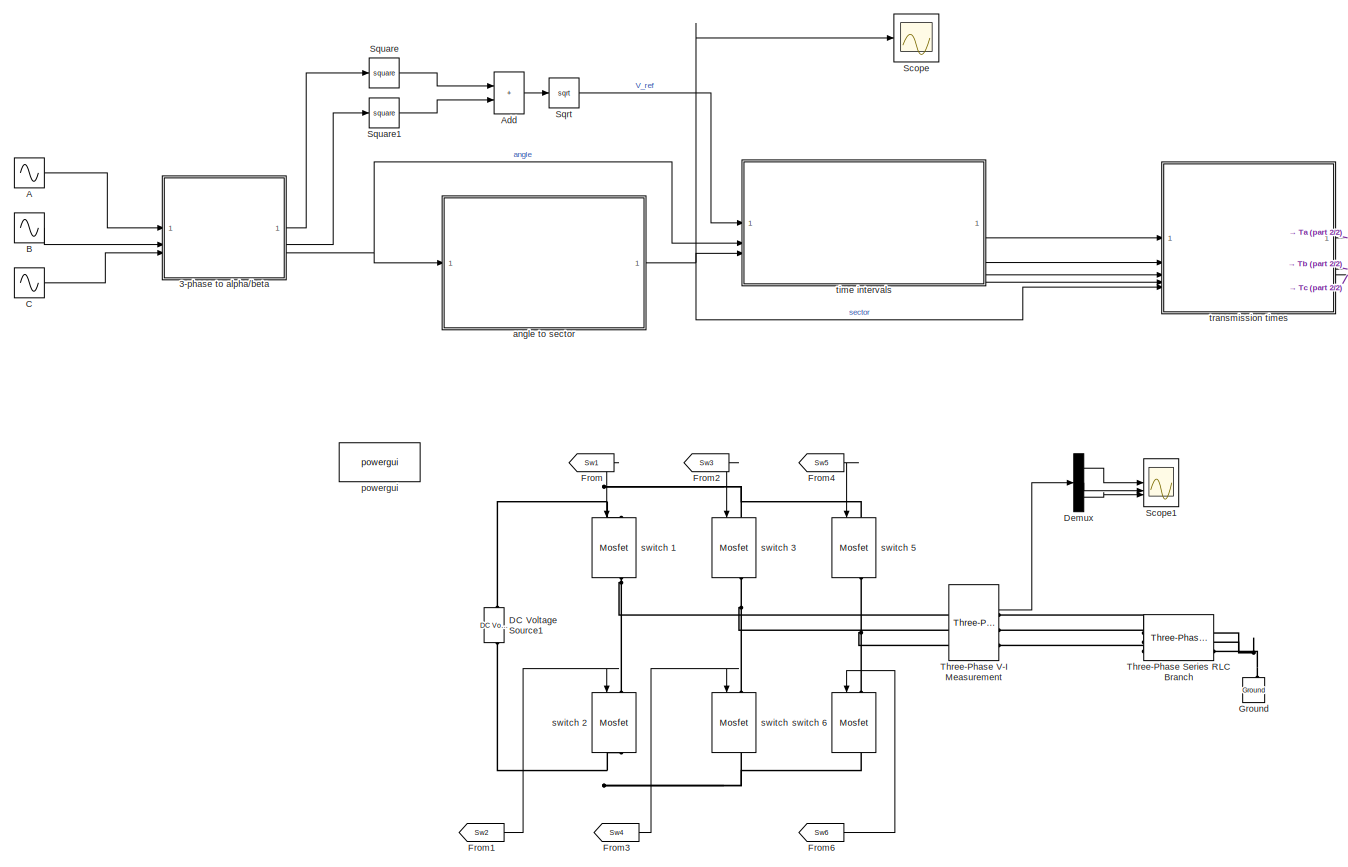
[diagram: root canvas - part 1/2, most of the canvas]
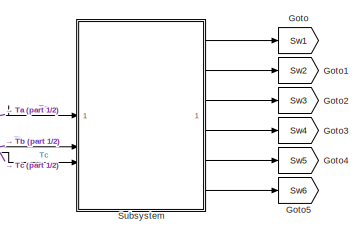
[diagram: root canvas - part 2/2, top right region]
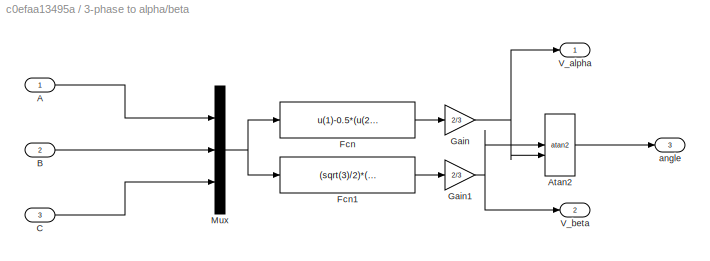
MODEL slx_c0efaa13495a
KIND model
CONFIG AbsTol = auto
CONFIG EnableMultiTasking = off
CONFIG FixedStep = auto
CONFIG MaxStep = 0.0001
CONFIG MinStep = auto
CONFIG RelTol = 1e-3
CONFIG SampleTimeConstraint = Unconstrained
CONFIG SolverName = VariableStepAuto
CONFIG StartTime = 0.0
CONFIG StopTime = 1
BLOCK [SubSystem] 3-phase to alpha//beta
BLOCK [Inport] 3-phase to alpha//beta/A
BLOCK [Trigonometry] 3-phase to alpha//beta/Atan2
  Operator = atan2
BLOCK [Inport] 3-phase to alpha//beta/B
  Port = 2
BLOCK [Inport] 3-phase to alpha//beta/C
  Port = 3
BLOCK [Fcn] 3-phase to alpha//beta/Fcn
  Expr = u(1)-0.5*(u(2)+u(3))
BLOCK [Fcn] 3-phase to alpha//beta/Fcn1
  Expr = (sqrt(3)/2)*(u(2)-u(3))
BLOCK [Gain] 3-phase to alpha//beta/Gain
  Gain = 2/3
BLOCK [Gain] 3-phase to alpha//beta/Gain1
  Gain = 2/3
BLOCK [Mux] 3-phase to alpha//beta/Mux
  DisplayOption = bar
  Inputs = 3
BLOCK [Outport] 3-phase to alpha//beta/V_alpha
BLOCK [Outport] 3-phase to alpha//beta/V_beta
  Port = 2
BLOCK [Outport] 3-phase to alpha//beta/angle
  Port = 3
BLOCK [Sin] A
  Frequency = 2*pi*50
  SampleTime = 0
BLOCK [Sum] Add
  IconShape = rectangular
BLOCK [Sin] B
  Frequency = 2*pi*50
  Phase = 2*pi/3
  SampleTime = 0
BLOCK [Sin] C
  Frequency = 2*pi*50
  Phase = 4*pi/3
  SampleTime = 0
BLOCK [Reference] DC Voltage Source1  REF=spsDCVoltageSourceLib/DC Voltage Source
  LibrarySourceBlock = sps_lib/Sources/DC Voltage Source
  SourceBlock = spsDCVoltageSourceLib/DC Voltage Source
  SourceType = DC Voltage Source
BLOCK [Demux] Demux
  Outputs = 3
BLOCK [From] From
  GotoTag = Sw1
BLOCK [From] From1
  GotoTag = Sw2
BLOCK [From] From2
  GotoTag = Sw3
BLOCK [From] From3
  GotoTag = Sw4
BLOCK [From] From4
  GotoTag = Sw5
BLOCK [From] From6
  GotoTag = Sw6
BLOCK [Goto] Goto
  GotoTag = Sw1
BLOCK [Goto] Goto1
  GotoTag = Sw2
BLOCK [Goto] Goto2
  GotoTag = Sw3
BLOCK [Goto] Goto3
  GotoTag = Sw4
BLOCK [Goto] Goto4
  GotoTag = Sw5
BLOCK [Goto] Goto5
  GotoTag = Sw6
BLOCK [Reference] Ground  REF=spsGroundLib/Ground
  LibrarySourceBlock = sps_lib/Utilities/Ground
  NameLocation = right
  SourceBlock = spsGroundLib/Ground
  SourceType = Ground
BLOCK [Scope] Scope
  Floating = off
  NumInputPorts = 3
  ScopeSpecificationString = Simulink.scopes.TimeScopeBlockCfg('CurrentConfiguration', extmgr.ConfigurationSet(extmgr.Configuration('Core','General UI',true),extmgr.Configuration('Core','Source UI',true),extmgr.Configuration('Sources','WiredSimulink',true),extmgr.Configuration('Visuals','Time Domain',true,'SerializedDisplays',{struct('MinYLimReal','-0.75','MaxYLimReal','6.75','YLabelReal','','MinYLimMag','0.00000','MaxYLimMag...<+1555ch>
BLOCK [Scope] Scope1
  Floating = off
  NumInputPorts = 3
  ScopeSpecificationString = Simulink.scopes.TimeScopeBlockCfg('CurrentConfiguration', extmgr.ConfigurationSet(extmgr.Configuration('Core','General UI',true),extmgr.Configuration('Core','Source UI',true),extmgr.Configuration('Sources','WiredSimulink',true,'DataLoggingVariableName','ScopeData2'),extmgr.Configuration('Visuals','Time Domain',true,'SerializedDisplays',{struct('MinYLimReal','-67.56476','MaxYLimReal','67.56708','YL...<+1510ch>
BLOCK [Sqrt] Sqrt
BLOCK [Math] Square
  Operator = square
BLOCK [Math] Square1
  Operator = square
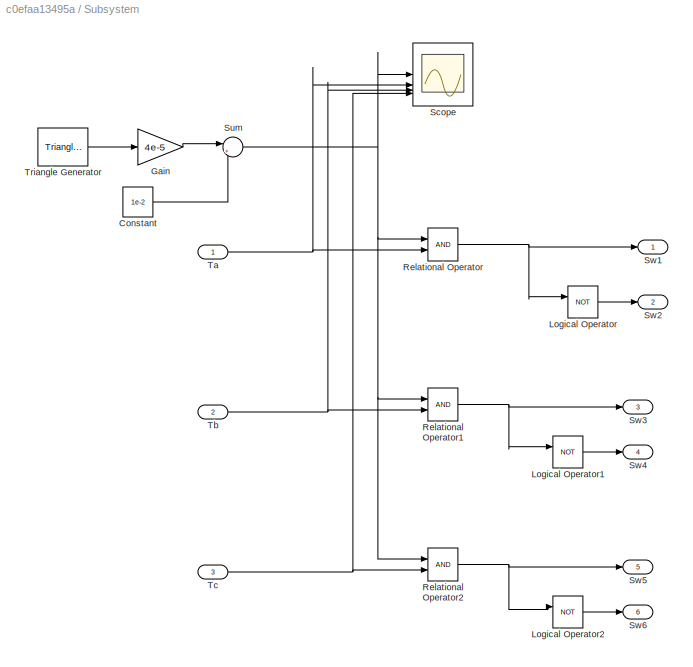
BLOCK [SubSystem] Subsystem
BLOCK [Constant] Subsystem/Constant
  Value = 1e-2
BLOCK [Gain] Subsystem/Gain
  Gain = 4e-5
BLOCK [Logic] Subsystem/Logical Operator
  AllPortsSameDT = off
  Operator = NOT
  OutDataTypeStr = boolean
BLOCK [Logic] Subsystem/Logical Operator1
  AllPortsSameDT = off
  Operator = NOT
  OutDataTypeStr = boolean
BLOCK [Logic] Subsystem/Logical Operator2
  AllPortsSameDT = off
  Operator = NOT
  OutDataTypeStr = boolean
BLOCK [RelationalOperator] Subsystem/Relational Operator
  InputSameDT = off
  OutDataTypeStr = boolean
  RndMeth = Simplest
BLOCK [RelationalOperator] Subsystem/Relational Operator1
  InputSameDT = off
  OutDataTypeStr = boolean
  RndMeth = Simplest
BLOCK [RelationalOperator] Subsystem/Relational Operator2
  InputSameDT = off
  OutDataTypeStr = boolean
  RndMeth = Simplest
BLOCK [Scope] Subsystem/Scope
  Floating = off
  NumInputPorts = 4
  ScopeSpecificationString = Simulink.scopes.TimeScopeBlockCfg('CurrentConfiguration', extmgr.ConfigurationSet(extmgr.Configuration('Core','General UI',true),extmgr.Configuration('Core','Source UI',true),extmgr.Configuration('Sources','WiredSimulink',true,'DataLoggingVariableName','ScopeData1'),extmgr.Configuration('Visuals','Time Domain',true,'SerializedDisplays',{struct('MinYLimReal','0.00995','MaxYLimReal','0.01005','YLabe...<+1423ch>
BLOCK [Sum] Subsystem/Sum
  Inputs = |++
BLOCK [Outport] Subsystem/Sw1
BLOCK [Outport] Subsystem/Sw2
  Port = 2
BLOCK [Outport] Subsystem/Sw3
  Port = 3
BLOCK [Outport] Subsystem/Sw4
  Port = 4
BLOCK [Outport] Subsystem/Sw5
  Port = 5
BLOCK [Outport] Subsystem/Sw6
  Port = 6
BLOCK [Inport] Subsystem/Ta
BLOCK [Inport] Subsystem/Tb
  Port = 2
BLOCK [Inport] Subsystem/Tc
  Port = 3
BLOCK [Reference] Subsystem/Triangle Generator  REF=spsTriangleGeneratorLib/Triangle
Generator
  LibrarySourceBlock = sps_lib/Sources/Signal Generator Sources/Triangle\nGenerator
  SourceBlock = spsTriangleGeneratorLib/Triangle\nGenerator
  SourceType = Triangle Generator
BLOCK [Reference] Three-Phase Series RLC Branch  REF=spsThreePhaseSeriesRLCBranchLib/Three-Phase
Series RLC Branch
  AttributesFormatString = \n
  LibrarySourceBlock = sps_lib/Passives/Three-Phase\nSeries RLC Branch
  SourceBlock = spsThreePhaseSeriesRLCBranchLib/Three-Phase\nSeries RLC Branch
  SourceType = Three-Phase Series RLC Branch
BLOCK [Reference] Three-Phase V-I Measurement  REF=spsThreePhaseVIMeasurementLib/Three-Phase
V-I Measurement
  LibrarySourceBlock = sps_lib/Sensors and Measurements/Three-Phase\nV-I Measurement
  SourceBlock = spsThreePhaseVIMeasurementLib/Three-Phase\nV-I Measurement
  SourceType = Three-Phase VI Measurement
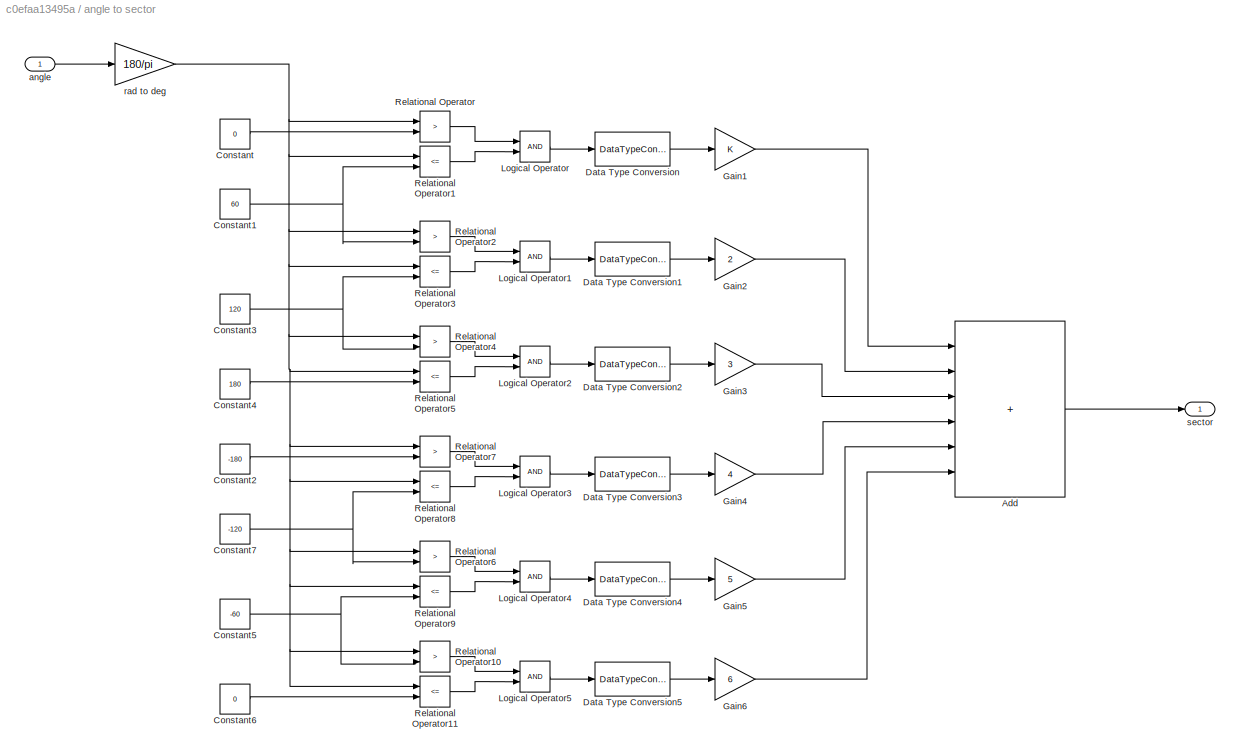
BLOCK [SubSystem] angle to sector
BLOCK [Sum] angle to sector/Add
  IconShape = rectangular
  Inputs = ++++++
BLOCK [Constant] angle to sector/Constant
  Value = 0
BLOCK [Constant] angle to sector/Constant1
  Value = 60
BLOCK [Constant] angle to sector/Constant2
  Value = -180
BLOCK [Constant] angle to sector/Constant3
  Value = 120
BLOCK [Constant] angle to sector/Constant4
  Value = 180
BLOCK [Constant] angle to sector/Constant5
  Value = -60
BLOCK [Constant] angle to sector/Constant6
  Value = 0
BLOCK [Constant] angle to sector/Constant7
  Value = -120
BLOCK [DataTypeConversion] angle to sector/Data Type Conversion
  RndMeth = Floor
  SaturateOnIntegerOverflow = off
BLOCK [DataTypeConversion] angle to sector/Data Type Conversion1
  RndMeth = Floor
  SaturateOnIntegerOverflow = off
BLOCK [DataTypeConversion] angle to sector/Data Type Conversion2
  RndMeth = Floor
  SaturateOnIntegerOverflow = off
BLOCK [DataTypeConversion] angle to sector/Data Type Conversion3
  RndMeth = Floor
  SaturateOnIntegerOverflow = off
BLOCK [DataTypeConversion] angle to sector/Data Type Conversion4
  RndMeth = Floor
  SaturateOnIntegerOverflow = off
BLOCK [DataTypeConversion] angle to sector/Data Type Conversion5
  RndMeth = Floor
  SaturateOnIntegerOverflow = off
BLOCK [Gain] angle to sector/Gain1
BLOCK [Gain] angle to sector/Gain2
  Gain = 2
BLOCK [Gain] angle to sector/Gain3
  Gain = 3
BLOCK [Gain] angle to sector/Gain4
  Gain = 4
BLOCK [Gain] angle to sector/Gain5
  Gain = 5
BLOCK [Gain] angle to sector/Gain6
  Gain = 6
BLOCK [Logic] angle to sector/Logical Operator
  AllPortsSameDT = off
  OutDataTypeStr = boolean
BLOCK [Logic] angle to sector/Logical Operator1
  AllPortsSameDT = off
  OutDataTypeStr = boolean
BLOCK [Logic] angle to sector/Logical Operator2
  AllPortsSameDT = off
  OutDataTypeStr = boolean
BLOCK [Logic] angle to sector/Logical Operator3
  AllPortsSameDT = off
  OutDataTypeStr = boolean
BLOCK [Logic] angle to sector/Logical Operator4
  AllPortsSameDT = off
  OutDataTypeStr = boolean
BLOCK [Logic] angle to sector/Logical Operator5
  AllPortsSameDT = off
  OutDataTypeStr = boolean
BLOCK [RelationalOperator] angle to sector/Relational Operator
  InputSameDT = off
  Operator = >
  OutDataTypeStr = boolean
  RndMeth = Simplest
BLOCK [RelationalOperator] angle to sector/Relational Operator1
  InputSameDT = off
  Operator = <=
  OutDataTypeStr = boolean
  RndMeth = Simplest
BLOCK [RelationalOperator] angle to sector/Relational Operator10
  InputSameDT = off
  Operator = >
  OutDataTypeStr = boolean
  RndMeth = Simplest
BLOCK [RelationalOperator] angle to sector/Relational Operator11
  InputSameDT = off
  Operator = <=
  OutDataTypeStr = boolean
  RndMeth = Simplest
BLOCK [RelationalOperator] angle to sector/Relational Operator2
  InputSameDT = off
  Operator = >
  OutDataTypeStr = boolean
  RndMeth = Simplest
BLOCK [RelationalOperator] angle to sector/Relational Operator3
  InputSameDT = off
  Operator = <=
  OutDataTypeStr = boolean
  RndMeth = Simplest
BLOCK [RelationalOperator] angle to sector/Relational Operator4
  InputSameDT = off
  Operator = >
  OutDataTypeStr = boolean
  RndMeth = Simplest
BLOCK [RelationalOperator] angle to sector/Relational Operator5
  InputSameDT = off
  Operator = <=
  OutDataTypeStr = boolean
  RndMeth = Simplest
BLOCK [RelationalOperator] angle to sector/Relational Operator6
  InputSameDT = off
  Operator = >
  OutDataTypeStr = boolean
  RndMeth = Simplest
BLOCK [RelationalOperator] angle to sector/Relational Operator7
  InputSameDT = off
  Operator = >
  OutDataTypeStr = boolean
  RndMeth = Simplest
BLOCK [RelationalOperator] angle to sector/Relational Operator8
  InputSameDT = off
  Operator = <=
  OutDataTypeStr = boolean
  RndMeth = Simplest
BLOCK [RelationalOperator] angle to sector/Relational Operator9
  InputSameDT = off
  Operator = <=
  OutDataTypeStr = boolean
  RndMeth = Simplest
BLOCK [Inport] angle to sector/angle
BLOCK [Gain] angle to sector/rad to deg
  Gain = 180/pi
BLOCK [Outport] angle to sector/sector
BLOCK [Reference] powergui  REF=sps_lib/powergui
  LibrarySourceBlock = sps_lib/powergui
  Priority = 1
  SourceBlock = sps_lib/powergui
  SourceType = PSB option menu block
BLOCK [Reference] switch 1  REF=spsMosfetLib/Mosfet
  LibrarySourceBlock = sps_lib/Power Electronics/Mosfet
  NameLocation = left
  SourceBlock = spsMosfetLib/Mosfet
  SourceType = Mosfet
BLOCK [Reference] switch 2  REF=spsMosfetLib/Mosfet
  LibrarySourceBlock = sps_lib/Power Electronics/Mosfet
  NameLocation = left
  SourceBlock = spsMosfetLib/Mosfet
  SourceType = Mosfet
BLOCK [Reference] switch 3  REF=spsMosfetLib/Mosfet
  LibrarySourceBlock = sps_lib/Power Electronics/Mosfet
  NameLocation = left
  SourceBlock = spsMosfetLib/Mosfet
  SourceType = Mosfet
BLOCK [Reference] switch 4  REF=spsMosfetLib/Mosfet
  LibrarySourceBlock = sps_lib/Power Electronics/Mosfet
  NameLocation = left
  SourceBlock = spsMosfetLib/Mosfet
  SourceType = Mosfet
BLOCK [Reference] switch 5  REF=spsMosfetLib/Mosfet
  LibrarySourceBlock = sps_lib/Power Electronics/Mosfet
  NameLocation = left
  SourceBlock = spsMosfetLib/Mosfet
  SourceType = Mosfet
BLOCK [Reference] switch 6  REF=spsMosfetLib/Mosfet
  LibrarySourceBlock = sps_lib/Power Electronics/Mosfet
  NameLocation = left
  SourceBlock = spsMosfetLib/Mosfet
  SourceType = Mosfet
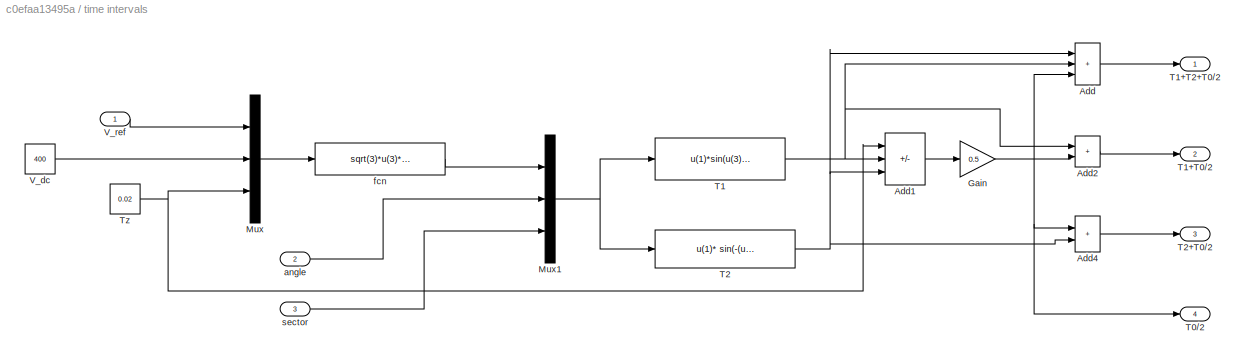
BLOCK [SubSystem] time intervals
BLOCK [Sum] time intervals/Add
  IconShape = rectangular
  Inputs = +++
BLOCK [Sum] time intervals/Add1
  IconShape = rectangular
  Inputs = +--
BLOCK [Sum] time intervals/Add2
  IconShape = rectangular
BLOCK [Sum] time intervals/Add4
  IconShape = rectangular
BLOCK [Gain] time intervals/Gain
  Gain = 0.5
BLOCK [Mux] time intervals/Mux
  DisplayOption = bar
  Inputs = 3
BLOCK [Mux] time intervals/Mux1
  DisplayOption = bar
  Inputs = 3
BLOCK [Outport] time intervals/T0//2
  Port = 4
BLOCK [Fcn] time intervals/T1
  Expr = u(1)*sin(u(3)*pi/3 - u(2))
BLOCK [Outport] time intervals/T1+T0//2
  Port = 2
BLOCK [Outport] time intervals/T1+T2+T0//2
BLOCK [Fcn] time intervals/T2
  Expr = u(1)* sin(-(u(3)-1)*pi/3 + u(2))
BLOCK [Outport] time intervals/T2+T0//2
  Port = 3
BLOCK [Constant] time intervals/Tz
  Value = 0.02
BLOCK [Constant] time intervals/V_dc
  Value = 400
BLOCK [Inport] time intervals/V_ref
BLOCK [Inport] time intervals/angle
  Port = 2
BLOCK [Fcn] time intervals/fcn
  Expr = sqrt(3)*u(3)*u(1)/u(2)
BLOCK [Inport] time intervals/sector
  Port = 3
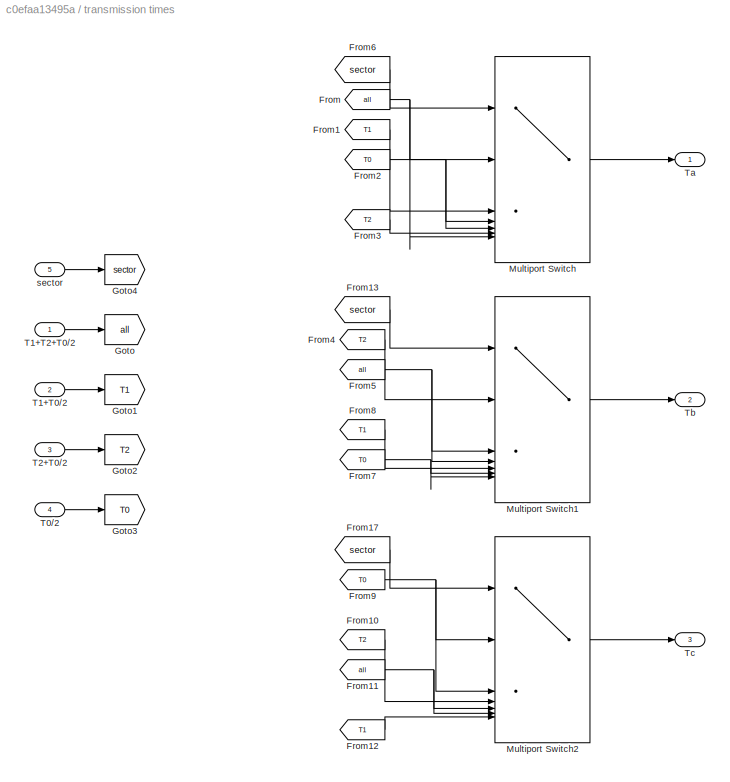
BLOCK [SubSystem] transmission times
BLOCK [From] transmission times/From
  GotoTag = all
BLOCK [From] transmission times/From1
  GotoTag = T1
BLOCK [From] transmission times/From10
  GotoTag = T2
BLOCK [From] transmission times/From11
  GotoTag = all
BLOCK [From] transmission times/From12
  GotoTag = T1
BLOCK [From] transmission times/From13
  GotoTag = sector
BLOCK [From] transmission times/From17
  GotoTag = sector
BLOCK [From] transmission times/From2
  GotoTag = T0
BLOCK [From] transmission times/From3
  GotoTag = T2
BLOCK [From] transmission times/From4
  GotoTag = T2
BLOCK [From] transmission times/From5
  GotoTag = all
BLOCK [From] transmission times/From6
  GotoTag = sector
BLOCK [From] transmission times/From7
  GotoTag = T0
BLOCK [From] transmission times/From8
  GotoTag = T1
BLOCK [From] transmission times/From9
  GotoTag = T0
BLOCK [Goto] transmission times/Goto
  GotoTag = all
BLOCK [Goto] transmission times/Goto1
  GotoTag = T1
BLOCK [Goto] transmission times/Goto2
  GotoTag = T2
BLOCK [Goto] transmission times/Goto3
  GotoTag = T0
BLOCK [Goto] transmission times/Goto4
  GotoTag = sector
BLOCK [MultiPortSwitch] transmission times/Multiport Switch
  DiagnosticForDefault = Warning
  InputSameDT = off
  Inputs = 6
  SaturateOnIntegerOverflow = off
BLOCK [MultiPortSwitch] transmission times/Multiport Switch1
  DiagnosticForDefault = Warning
  InputSameDT = off
  Inputs = 6
  SaturateOnIntegerOverflow = off
BLOCK [MultiPortSwitch] transmission times/Multiport Switch2
  DiagnosticForDefault = Warning
  InputSameDT = off
  Inputs = 6
  SaturateOnIntegerOverflow = off
BLOCK [Inport] transmission times/T0//2
  Port = 4
BLOCK [Inport] transmission times/T1+T0//2
  Port = 2
BLOCK [Inport] transmission times/T1+T2+T0//2
BLOCK [Inport] transmission times/T2+T0//2
  Port = 3
BLOCK [Outport] transmission times/Ta
BLOCK [Outport] transmission times/Tb
  Port = 2
BLOCK [Outport] transmission times/Tc
  Port = 3
BLOCK [Inport] transmission times/sector
  Port = 5
LINE 3-phase to alpha//beta/A:1 -> 3-phase to alpha//beta/Mux:1
LINE 3-phase to alpha//beta/Atan2:1 -> 3-phase to alpha//beta/angle:1
LINE 3-phase to alpha//beta/B:1 -> 3-phase to alpha//beta/Mux:2
LINE 3-phase to alpha//beta/C:1 -> 3-phase to alpha//beta/Mux:3
LINE 3-phase to alpha//beta/Fcn1:1 -> 3-phase to alpha//beta/Gain1:1
LINE 3-phase to alpha//beta/Fcn:1 -> 3-phase to alpha//beta/Gain:1
NET 3-phase to alpha//beta/Gain1:1 -> 3-phase to alpha//beta/Atan2:1, 3-phase to alpha//beta/V_beta:1
NET 3-phase to alpha//beta/Gain:1 -> 3-phase to alpha//beta/Atan2:2, 3-phase to alpha//beta/V_alpha:1
NET 3-phase to alpha//beta/Mux:1 -> 3-phase to alpha//beta/Fcn1:1, 3-phase to alpha//beta/Fcn:1
LINE 3-phase to alpha//beta:1 -> Square:1
LINE 3-phase to alpha//beta:2 -> Square1:1
NET 3-phase to alpha//beta:3 -> angle to sector:1, time intervals:2
LINE A:1 -> 3-phase to alpha//beta:1
LINE Add:1 -> Sqrt:1
LINE B:1 -> 3-phase to alpha//beta:2
LINE C:1 -> 3-phase to alpha//beta:3
LINE Demux:1 -> Scope1:1
LINE Demux:2 -> Scope1:2
LINE Demux:3 -> Scope1:3
LINE From1:1 -> switch 2:1
LINE From2:1 -> switch 3:1
LINE From3:1 -> switch 4:1
LINE From4:1 -> switch 5:1
LINE From6:1 -> switch 6:1
LINE From:1 -> switch 1:1
LINE Sqrt:1 -> time intervals:1
LINE Square1:1 -> Add:2
LINE Square:1 -> Add:1
LINE Subsystem/Constant:1 -> Subsystem/Sum:2
LINE Subsystem/Gain:1 -> Subsystem/Sum:1
LINE Subsystem/Logical Operator1:1 -> Subsystem/Sw4:1
LINE Subsystem/Logical Operator2:1 -> Subsystem/Sw6:1
LINE Subsystem/Logical Operator:1 -> Subsystem/Sw2:1
NET Subsystem/Relational Operator1:1 -> Subsystem/Logical Operator1:1, Subsystem/Sw3:1
NET Subsystem/Relational Operator2:1 -> Subsystem/Logical Operator2:1, Subsystem/Sw5:1
NET Subsystem/Relational Operator:1 -> Subsystem/Logical Operator:1, Subsystem/Sw1:1
NET Subsystem/Sum:1 -> Subsystem/Relational Operator1:1, Subsystem/Relational Operator2:1, Subsystem/Relational Operator:1, Subsystem/Scope:1
NET Subsystem/Ta:1 -> Subsystem/Relational Operator:2, Subsystem/Scope:2
NET Subsystem/Tb:1 -> Subsystem/Relational Operator1:2, Subsystem/Scope:3
NET Subsystem/Tc:1 -> Subsystem/Relational Operator2:2, Subsystem/Scope:4
LINE Subsystem/Triangle Generator:1 -> Subsystem/Gain:1
LINE Subsystem:1 -> Goto:1
LINE Subsystem:2 -> Goto1:1
LINE Subsystem:3 -> Goto2:1
LINE Subsystem:4 -> Goto3:1
LINE Subsystem:5 -> Goto4:1
LINE Subsystem:6 -> Goto5:1
LINE Three-Phase V-I Measurement:2 -> Demux:1
LINE angle to sector/Add:1 -> angle to sector/sector:1
NET angle to sector/Constant1:1 -> angle to sector/Relational Operator1:2, angle to sector/Relational Operator2:2
LINE angle to sector/Constant2:1 -> angle to sector/Relational Operator7:2
NET angle to sector/Constant3:1 -> angle to sector/Relational Operator3:2, angle to sector/Relational Operator4:2
LINE angle to sector/Constant4:1 -> angle to sector/Relational Operator5:2
NET angle to sector/Constant5:1 -> angle to sector/Relational Operator10:2, angle to sector/Relational Operator9:2
LINE angle to sector/Constant6:1 -> angle to sector/Relational Operator11:2
NET angle to sector/Constant7:1 -> angle to sector/Relational Operator6:2, angle to sector/Relational Operator8:2
LINE angle to sector/Constant:1 -> angle to sector/Relational Operator:2
LINE angle to sector/Data Type Conversion1:1 -> angle to sector/Gain2:1
LINE angle to sector/Data Type Conversion2:1 -> angle to sector/Gain3:1
LINE angle to sector/Data Type Conversion3:1 -> angle to sector/Gain4:1
LINE angle to sector/Data Type Conversion4:1 -> angle to sector/Gain5:1
LINE angle to sector/Data Type Conversion5:1 -> angle to sector/Gain6:1
LINE angle to sector/Data Type Conversion:1 -> angle to sector/Gain1:1
LINE angle to sector/Gain1:1 -> angle to sector/Add:1
LINE angle to sector/Gain2:1 -> angle to sector/Add:2
LINE angle to sector/Gain3:1 -> angle to sector/Add:3
LINE angle to sector/Gain4:1 -> angle to sector/Add:4
LINE angle to sector/Gain5:1 -> angle to sector/Add:5
LINE angle to sector/Gain6:1 -> angle to sector/Add:6
LINE angle to sector/Logical Operator1:1 -> angle to sector/Data Type Conversion1:1
LINE angle to sector/Logical Operator2:1 -> angle to sector/Data Type Conversion2:1
LINE angle to sector/Logical Operator3:1 -> angle to sector/Data Type Conversion3:1
LINE angle to sector/Logical Operator4:1 -> angle to sector/Data Type Conversion4:1
LINE angle to sector/Logical Operator5:1 -> angle to sector/Data Type Conversion5:1
LINE angle to sector/Logical Operator:1 -> angle to sector/Data Type Conversion:1
LINE angle to sector/Relational Operator10:1 -> angle to sector/Logical Operator5:1
LINE angle to sector/Relational Operator11:1 -> angle to sector/Logical Operator5:2
LINE angle to sector/Relational Operator1:1 -> angle to sector/Logical Operator:2
LINE angle to sector/Relational Operator2:1 -> angle to sector/Logical Operator1:1
LINE angle to sector/Relational Operator3:1 -> angle to sector/Logical Operator1:2
LINE angle to sector/Relational Operator4:1 -> angle to sector/Logical Operator2:1
LINE angle to sector/Relational Operator5:1 -> angle to sector/Logical Operator2:2
LINE angle to sector/Relational Operator6:1 -> angle to sector/Logical Operator4:1
LINE angle to sector/Relational Operator7:1 -> angle to sector/Logical Operator3:1
LINE angle to sector/Relational Operator8:1 -> angle to sector/Logical Operator3:2
LINE angle to sector/Relational Operator9:1 -> angle to sector/Logical Operator4:2
LINE angle to sector/Relational Operator:1 -> angle to sector/Logical Operator:1
LINE angle to sector/angle:1 -> angle to sector/rad to deg:1
NET angle to sector/rad to deg:1 -> angle to sector/Relational Operator10:1, angle to sector/Relational Operator11:1, angle to sector/Relational Operator1:1, angle to sector/Relational Operator2:1, angle to sector/Relational Operator3:1, angle to sector/Relational Operator4:1, angle to sector/Relational Operator5:1, angle to sector/Relational Operator6:1, angle to sector/Relational Operator7:1, angle to sector/Relational Operator8:1, angle to sector/Relational Operator9:1, angle to sector/Relational Operator:1
NET angle to sector:1 -> Scope:1, time intervals:3, transmission times:5
LINE time intervals/Add1:1 -> time intervals/Gain:1
LINE time intervals/Add2:1 -> time intervals/T1+T0//2:1
LINE time intervals/Add4:1 -> time intervals/T2+T0//2:1
LINE time intervals/Add:1 -> time intervals/T1+T2+T0//2:1
NET time intervals/Gain:1 -> time intervals/Add2:2, time intervals/Add4:1, time intervals/Add:3, time intervals/T0//2:1
NET time intervals/Mux1:1 -> time intervals/T1:1, time intervals/T2:1
LINE time intervals/Mux:1 -> time intervals/fcn:1
NET time intervals/T1:1 -> time intervals/Add1:2, time intervals/Add2:1, time intervals/Add:2
NET time intervals/T2:1 -> time intervals/Add1:3, time intervals/Add4:2, time intervals/Add:1
NET time intervals/Tz:1 -> time intervals/Add1:1, time intervals/Mux:3
LINE time intervals/V_dc:1 -> time intervals/Mux:2
LINE time intervals/V_ref:1 -> time intervals/Mux:1
LINE time intervals/angle:1 -> time intervals/Mux1:2
LINE time intervals/fcn:1 -> time intervals/Mux1:1
LINE time intervals/sector:1 -> time intervals/Mux1:3
LINE time intervals:1 -> transmission times:1
LINE time intervals:2 -> transmission times:2
LINE time intervals:3 -> transmission times:3
LINE time intervals:4 -> transmission times:4
LINE transmission times/From10:1 -> transmission times/Multiport Switch2:4
NET transmission times/From11:1 -> transmission times/Multiport Switch2:5, transmission times/Multiport Switch2:6
LINE transmission times/From12:1 -> transmission times/Multiport Switch2:7
LINE transmission times/From13:1 -> transmission times/Multiport Switch1:1
LINE transmission times/From17:1 -> transmission times/Multiport Switch2:1
LINE transmission times/From1:1 -> transmission times/Multiport Switch:3
NET transmission times/From2:1 -> transmission times/Multiport Switch:4, transmission times/Multiport Switch:5
LINE transmission times/From3:1 -> transmission times/Multiport Switch:6
LINE transmission times/From4:1 -> transmission times/Multiport Switch1:2
NET transmission times/From5:1 -> transmission times/Multiport Switch1:3, transmission times/Multiport Switch1:4
LINE transmission times/From6:1 -> transmission times/Multiport Switch:1
NET transmission times/From7:1 -> transmission times/Multiport Switch1:6, transmission times/Multiport Switch1:7
LINE transmission times/From8:1 -> transmission times/Multiport Switch1:5
NET transmission times/From9:1 -> transmission times/Multiport Switch2:2, transmission times/Multiport Switch2:3
NET transmission times/From:1 -> transmission times/Multiport Switch:2, transmission times/Multiport Switch:7
LINE transmission times/Multiport Switch1:1 -> transmission times/Tb:1
LINE transmission times/Multiport Switch2:1 -> transmission times/Tc:1
LINE transmission times/Multiport Switch:1 -> transmission times/Ta:1
LINE transmission times/T0//2:1 -> transmission times/Goto3:1
LINE transmission times/T1+T0//2:1 -> transmission times/Goto1:1
LINE transmission times/T1+T2+T0//2:1 -> transmission times/Goto:1
LINE transmission times/T2+T0//2:1 -> transmission times/Goto2:1
LINE transmission times/sector:1 -> transmission times/Goto4:1
LINE transmission times:1 -> Subsystem:1
LINE transmission times:2 -> Subsystem:2
LINE transmission times:3 -> Subsystem:3
PNET net1: DC Voltage Source1:LConn1 -- switch 2:RConn1 -- switch 4:RConn1 -- switch 6:RConn1
PNET net2: DC Voltage Source1:RConn1 -- switch 1:LConn1 -- switch 3:LConn1 -- switch 5:LConn1
PNET net3: Ground:LConn1 -- Three-Phase Series RLC Branch:RConn1 -- Three-Phase Series RLC Branch:RConn2 -- Three-Phase Series RLC Branch:RConn3
PLINE Three-Phase Series RLC Branch:LConn1 -- Three-Phase V-I Measurement:RConn1
PLINE Three-Phase Series RLC Branch:LConn2 -- Three-Phase V-I Measurement:RConn2
PLINE Three-Phase Series RLC Branch:LConn3 -- Three-Phase V-I Measurement:RConn3
PNET net4: Three-Phase V-I Measurement:LConn1 -- switch 1:RConn1 -- switch 2:LConn1
PNET net5: Three-Phase V-I Measurement:LConn2 -- switch 3:RConn1 -- switch 4:LConn1
PNET net6: Three-Phase V-I Measurement:LConn3 -- switch 5:RConn1 -- switch 6:LConn1
note: NET lines group one-source signal fan-out (src -> all destinations, sorted); 1:1 wires keep LINE; PNET lines group multi-terminal physical nets as a canonical sorted terminal list (undirected conserving connections); 2-terminal nets keep the pairwise PLINE form
